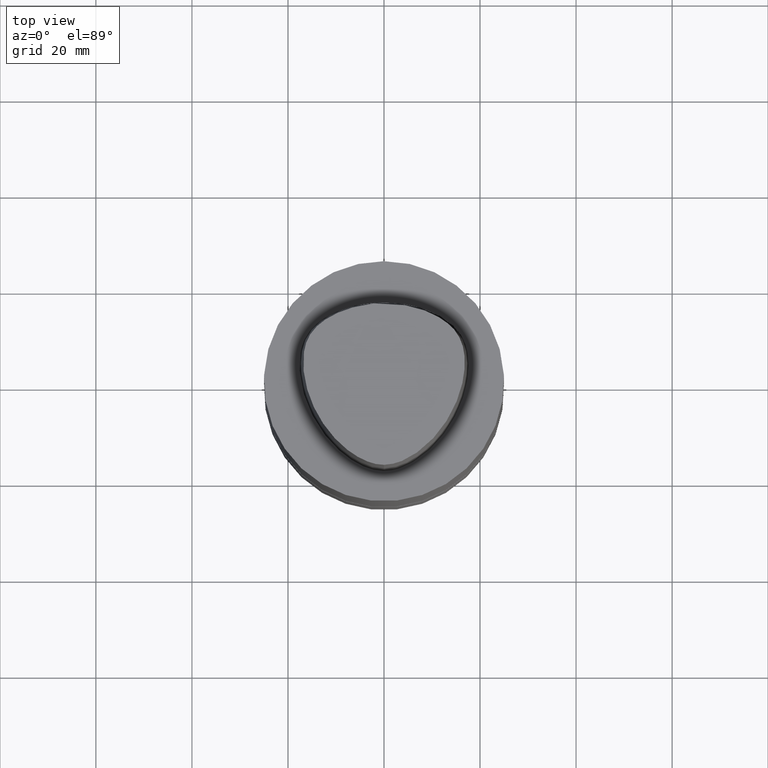
[diagram: clean part render]
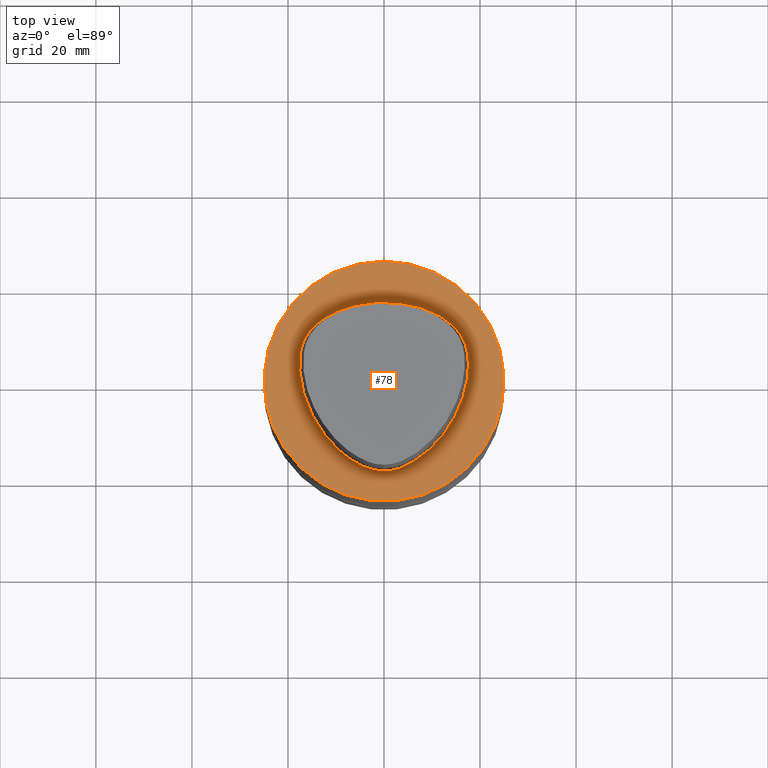
[diagram: same view with one face highlighted and labeled with its STEP entity id]
A machine part, top view. The second image highlights one B-rep face of the part: STEP entity #78.
In plain terms, the highlighted planar face has unit normal (-0, -0, 1).
Its self-contained STEP definition (entity closure, byte-faithful):
#78=ADVANCED_FACE('Unnamed[1]',(#173,#174),#175,.T.);
#83=EDGE_CURVE('Unnamed[1]',#182,#182,#183,.T.);
#85=EDGE_CURVE('Unnamed[1]',#156,#156,#185,.T.);
#156=VERTEX_POINT('',#271);
#173=FACE_BOUND('',#343,.T.);
#174=FACE_OUTER_BOUND('',#344,.T.);
#175=PLANE('',#345);
#182=VERTEX_POINT('',#354);
#183=CIRCLE('',#355,25.0);
#185=B_SPLINE_CURVE_WITH_KNOTS('',3,(#358,#359,#360,#361,#362,#363,#364,#365,#366,#367,#368,#369,#370,#371,#372,#373,#374,#375,#376,#377,#378,#379,#380,#381,#382,#383,#384,#385,#386,#387,#388,#389,#390,#391,#392,#393,#394,#395,#396,#397,#398,#399,#400,#401,#402,#403,#404,#405,#406,#407,#408,#409,#410,#411,#412,#413,#414,#415,#416,#417,#418,#419,#420,#421,#422,#423,#424,#425,#426,#427,#428,#429,#430,#431,#432,#433,#434,#435,#436,#437,#438,#439,#440,#441,#442,#443,#444,#445,#446,#447,#448,#449,#450,#451,#452,#453),.UNSPECIFIED.,.T.,.F.,(4,2,2,2,2,2,2,2,2,2,2,2,2,2,2,2,2,2,2,2,2,2,2,2,2,2,2,2,2,2,2,2,2,2,2,2,2,2,2,2,2,2,2,2,2,2,2,4),(0.0,0.000251979175567,0.023135829350767,0.046149078767971,0.068686553945372,0.09058948843834,0.11187442371895,0.132659030725504,0.153111474090064,0.173428097006866,0.193812703683075,0.214465113334926,0.235566638619369,0.257256396596226,0.279590584305387,0.302476275092963,0.325611612149197,0.348735785989546,0.371826971229282,0.39455923139207,0.416669726533691,0.438154204641074,0.459103554741756,0.479643077908811,0.50010643098029,0.520399705216369,0.54092682403315,0.561890845659905,0.583370991138857,0.605476574502583,0.62820876493626,0.65131550684809,0.674427687768046,0.697531018602722,0.720425222070344,0.742763449220249,0.764449723968905,0.785551037463572,0.806204240231889,0.826588983931571,0.846905402970388,0.867357715119018,0.88814171778586,0.909429413217286,0.931324749020081,0.953885589892717,0.976862732393428,1.0),.UNSPECIFIED.);
#271=CARTESIAN_POINT('',(-0.00144332333831829,-18.693734925237,1.58949405722709E-031));
#343=EDGE_LOOP('',(#934));
#344=EDGE_LOOP('',(#935));
#345=AXIS2_PLACEMENT_3D('',#936,#937,#938);
#354=CARTESIAN_POINT('',(-3.08148791101958E-031,25.0,3.06161699786838E-015));
#355=AXIS2_PLACEMENT_3D('',#945,#946,#947);
#358=CARTESIAN_POINT('',(-0.00144332333831829,-18.693734925237,1.58949405722709E-031));
#359=CARTESIAN_POINT('',(-0.0107097733408023,-18.6937739851458,1.18444691579815E-031));
#360=CARTESIAN_POINT('',(-0.0199759398304303,-18.6937986220233,1.90667064494336E-031));
#361=CARTESIAN_POINT('',(-0.87073259155424,-18.6947332287258,-2.46519032881566E-032));
#362=CARTESIAN_POINT('',(-1.7132146687811,-18.5561236138986,-1.72563323017096E-031));
#363=CARTESIAN_POINT('',(-3.34678034951543,-18.1076178270182,1.23259516440783E-031));
#364=CARTESIAN_POINT('',(-4.13763295357352,-17.7966649911857,0.0));
#365=CARTESIAN_POINT('',(-5.64401230436313,-17.0611782657116,-1.4791141972894E-031));
#366=CARTESIAN_POINT('',(-6.36074874666199,-16.6390568826018,9.86076131526265E-032));
#367=CARTESIAN_POINT('',(-7.71193183747336,-15.717785465073,-9.86076131526265E-032));
#368=CARTESIAN_POINT('',(-8.34816817062737,-15.221133209089,-1.97215226305253E-031));
#369=CARTESIAN_POINT('',(-9.54864267958622,-14.1801662707339,0.0));
#370=CARTESIAN_POINT('',(-10.1143778244459,-13.6375391489888,-9.86076131526265E-032));
#371=CARTESIAN_POINT('',(-11.1785439970871,-12.5139706700162,-9.86076131526265E-032));
#372=CARTESIAN_POINT('',(-11.6782474581115,-11.9342299113078,0.0));
#373=CARTESIAN_POINT('',(-12.6162342990191,-10.7421055435185,-1.97215226305253E-031));
#374=CARTESIAN_POINT('',(-13.055371557502,-10.1303892417647,0.0));
#375=CARTESIAN_POINT('',(-13.8770457728377,-8.87590863790404,9.86076131526265E-032));
#376=CARTESIAN_POINT('',(-14.2599388402702,-8.2333768267112,-9.86076131526265E-032));
#377=CARTESIAN_POINT('',(-14.97168833234,-6.91623888397976,1.97215226305253E-031));
#378=CARTESIAN_POINT('',(-15.3003608122286,-6.24153310972228,0.0));
#379=CARTESIAN_POINT('',(-15.9019181796067,-4.85709547419161,0.0));
#380=CARTESIAN_POINT('',(-16.1740130050164,-4.14701882283056,1.97215226305253E-031));
#381=CARTESIAN_POINT('',(-16.6580397097976,-2.68928374551173,0.0));
#382=CARTESIAN_POINT('',(-16.8685476043865,-1.9411430240201,0.0));
#383=CARTESIAN_POINT('',(-17.2177110849312,-0.406254182783721,0.0));
#384=CARTESIAN_POINT('',(-17.3541927925624,0.380994664903646,0.0));
#385=CARTESIAN_POINT('',(-17.5416073974851,1.99022033864964,0.0));
#386=CARTESIAN_POINT('',(-17.5899626525416,2.81255460248461,0.0));
#387=CARTESIAN_POINT('',(-17.563584952533,4.47617713465644,0.0));
#388=CARTESIAN_POINT('',(-17.4857707493695,5.31746225938347,0.0));
#389=CARTESIAN_POINT('',(-17.1712152948197,6.98496502795616,0.0));
#390=CARTESIAN_POINT('',(-16.932846471387,7.81104073212088,0.0));
#391=CARTESIAN_POINT('',(-16.2234989303146,9.36022258130064,0.0));
#392=CARTESIAN_POINT('',(-15.7525288634429,10.0833544868442,0.0));
#393=CARTESIAN_POINT('',(-14.6462939775209,11.3794173305263,0.0));
#394=CARTESIAN_POINT('',(-14.0112703709932,11.9525998966018,0.0));
#395=CARTESIAN_POINT('',(-12.6649577858213,12.9708269345166,0.0));
#396=CARTESIAN_POINT('',(-11.9549187103733,13.4176956956896,9.86076131526265E-032));
#397=CARTESIAN_POINT('',(-10.5004911910335,14.1970175551563,0.0));
#398=CARTESIAN_POINT('',(-9.7575533569854,14.5322819629711,-9.86076131526265E-032));
#399=CARTESIAN_POINT('',(-8.26254539063019,15.1133265717584,-9.86076131526265E-032));
#400=CARTESIAN_POINT('',(-7.51128946075537,15.3613193072948,-9.86076131526265E-032));
#401=CARTESIAN_POINT('',(-6.00522655029125,15.7739014771636,0.0));
#402=CARTESIAN_POINT('',(-5.25098149060303,15.940365829473,4.93038065763132E-032));
#403=CARTESIAN_POINT('',(-3.74452370137136,16.1783002530882,4.93038065763132E-032));
#404=CARTESIAN_POINT('',(-2.9925639102356,16.2517640462219,-1.97215226305253E-031));
#405=CARTESIAN_POINT('',(-1.48914620895443,16.3898646921674,-1.84889274661175E-031));
#406=CARTESIAN_POINT('',(-0.737689844422075,16.454322887119,1.84889274661175E-031));
#407=CARTESIAN_POINT('',(0.759326987696435,16.4536103338567,6.77927340424307E-032));
#408=CARTESIAN_POINT('',(1.50487089700432,16.3916719627081,-1.97215226305253E-031));
#409=CARTESIAN_POINT('',(3.00152605278829,16.2529050894156,-7.39557098644699E-032));
#410=CARTESIAN_POINT('',(3.75259609178933,16.1756990011092,-9.86076131526265E-032));
#411=CARTESIAN_POINT('',(5.25866006360267,15.9348272624441,-1.4791141972894E-031));
#412=CARTESIAN_POINT('',(6.01339669607053,15.7693347335975,1.4791141972894E-031));
#413=CARTESIAN_POINT('',(7.52174791015443,15.3636385273713,0.0));
#414=CARTESIAN_POINT('',(8.27488011859475,15.1217203315759,0.0));
#415=CARTESIAN_POINT('',(9.77128987676661,14.5452319544132,9.86076131526265E-032));
#416=CARTESIAN_POINT('',(10.5136604457977,14.20816965576,0.0));
#417=CARTESIAN_POINT('',(11.9637825858721,13.4211978486476,-9.86076131526265E-032));
#418=CARTESIAN_POINT('',(12.6699581239128,12.9683397391863,1.97215226305253E-031));
#419=CARTESIAN_POINT('',(14.0107896940302,11.9417697294217,0.0));
#420=CARTESIAN_POINT('',(14.6441161661191,11.3662092641098,0.0));
#421=CARTESIAN_POINT('',(15.7473444143777,10.0678607932392,-1.97215226305253E-031));
#422=CARTESIAN_POINT('',(16.2172279070315,9.34515014826243,0.0));
#423=CARTESIAN_POINT('',(16.9299748942786,7.79911649806176,-1.97215226305253E-031));
#424=CARTESIAN_POINT('',(17.1732678868715,6.97591096726165,0.0));
#425=CARTESIAN_POINT('',(17.4947165291087,5.31078187777496,0.0));
#426=CARTESIAN_POINT('',(17.5742122859752,4.46891080588121,0.0));
#427=CARTESIAN_POINT('',(17.5984503582426,2.80469955056706,0.0));
#428=CARTESIAN_POINT('',(17.5464797751086,1.98232636532396,0.0));
#429=CARTESIAN_POINT('',(17.3530324455179,0.373802434650424,0.0));
#430=CARTESIAN_POINT('',(17.2140873477037,-0.412741037255912,0.0));
#431=CARTESIAN_POINT('',(16.8640679933744,-1.94732109648072,0.0));
#432=CARTESIAN_POINT('',(16.6550051401061,-2.69581759912329,0.0));
#433=CARTESIAN_POINT('',(16.1721668251879,-4.15391144824405,0.0));
#434=CARTESIAN_POINT('',(15.8998720313717,-4.86400476772738,0.0));
#435=CARTESIAN_POINT('',(15.2976461182969,-6.24821889850589,0.0));
#436=CARTESIAN_POINT('',(14.9685089040774,-6.9226902547916,0.0));
#437=CARTESIAN_POINT('',(14.2562315235154,-8.23953226144279,0.0));
#438=CARTESIAN_POINT('',(13.8732695848357,-8.88199998589755,0.0));
#439=CARTESIAN_POINT('',(13.0515094984057,-10.1364217212122,0.0));
#440=CARTESIAN_POINT('',(12.612354568037,-10.7481421677501,0.0));
#441=CARTESIAN_POINT('',(11.6737441165097,-11.9397215871539,0.0));
#442=CARTESIAN_POINT('',(11.1734254860308,-12.5189032007719,0.0));
#443=CARTESIAN_POINT('',(10.1074745701417,-13.640998338336,-9.86076131526265E-032));
#444=CARTESIAN_POINT('',(9.54055189248609,-14.182694679151,0.0));
#445=CARTESIAN_POINT('',(8.33747886858352,-15.2200706351975,-9.86076131526265E-032));
#446=CARTESIAN_POINT('',(7.69981598148188,-15.7139994399403,0.0));
#447=CARTESIAN_POINT('',(6.35130494327661,-16.6404483507205,-4.93038065763132E-032));
#448=CARTESIAN_POINT('',(5.6388427285293,-17.0707143827691,-9.86076131526265E-032));
#449=CARTESIAN_POINT('',(4.1368842572046,-17.8149844980219,-9.86076131526265E-032));
#450=CARTESIAN_POINT('',(3.3461818724523,-18.1267181400899,2.46519032881566E-032));
#451=CARTESIAN_POINT('',(1.70267749900168,-18.5649567925168,1.72563323017096E-031));
#452=CARTESIAN_POINT('',(0.849421963398066,-18.6901483607448,0.0));
#453=CARTESIAN_POINT('',(-0.00144332333831829,-18.693734925237,1.58949405722709E-031));
#934=ORIENTED_EDGE('',*,*,#85,.T.);
#935=ORIENTED_EDGE('',*,*,#83,.F.);
#936=CARTESIAN_POINT('',(-1.54074395550979E-031,12.5,1.53080849893419E-015));
#937=DIRECTION('',(-6.12323399573677E-017,-1.22464679914735E-016,1.0));
#938=DIRECTION('',(1.23259516440783E-032,-1.0,-1.22464679914735E-016));
#945=CARTESIAN_POINT('',(0.0,0.0,0.0));
#946=DIRECTION('',(6.12323399573677E-017,1.22464679914735E-016,-1.0));
#947=DIRECTION('',(-1.23259516440783E-032,1.0,1.22464679914735E-016));